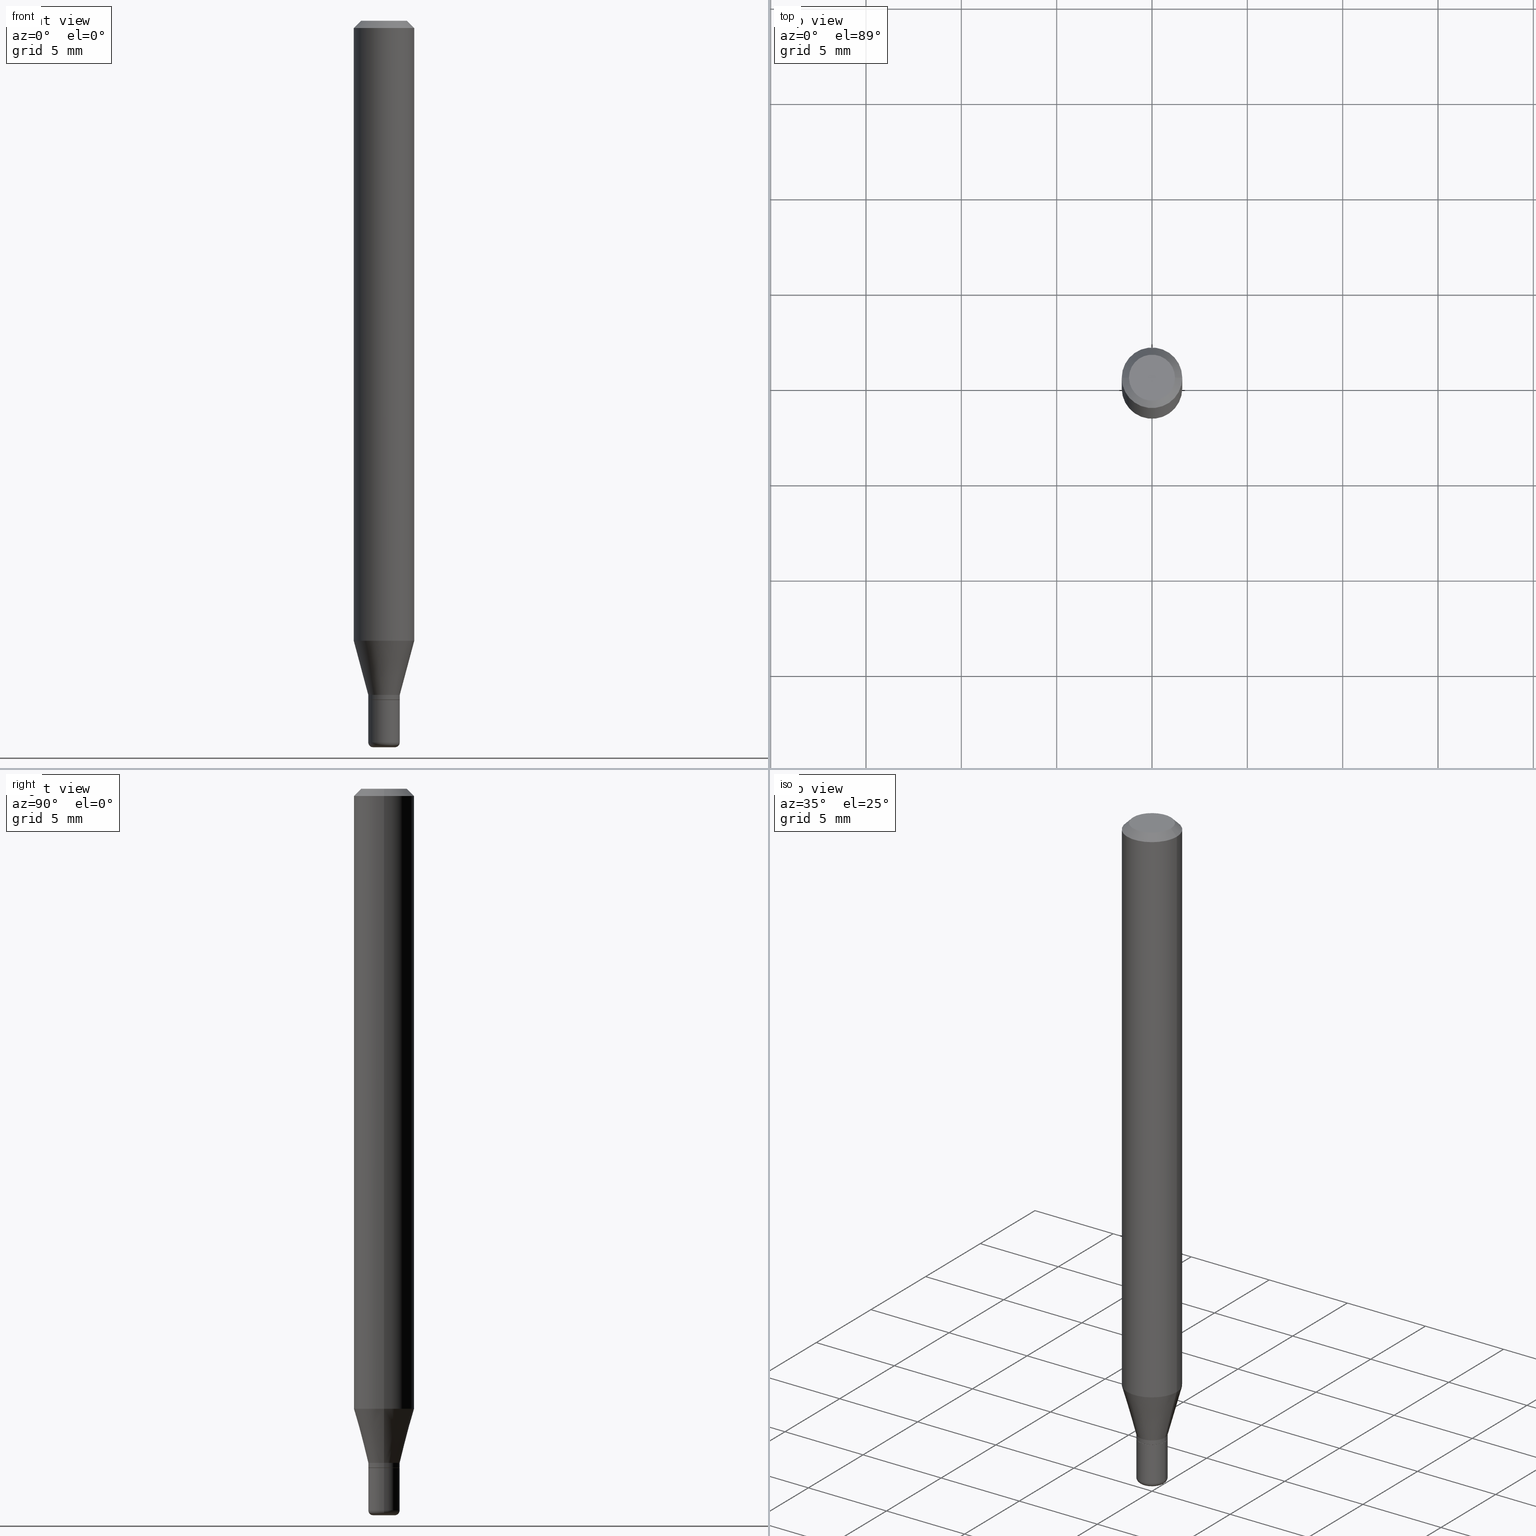
[diagram: canonical four-view strip — front | top / right | iso, engineering-drawing reading convention]
A machine part, canonical four-view strip (front | top / right | iso — engineering-drawing reading convention). The complete STEP part file that produces these views, byte-faithful:
ISO-10303-21;
HEADER;
FILE_DESCRIPTION (( 'STEP AP203' ),
    '1' );
FILE_NAME ('09166.STEP',
    '2024-02-29T22:53:20',
    ( '' ),
    ( '' ),
    'SwSTEP 2.0',
    'SolidWorks 2023',
    '' );
FILE_SCHEMA (( 'CONFIG_CONTROL_DESIGN' ));
ENDSEC;

DATA;
#1 = FACE_OUTER_BOUND ( 'NONE', #491, .T. ) ;
#2 = AXIS2_PLACEMENT_3D ( 'NONE', #228, #326, #374 ) ;
#3 = PERSON_AND_ORGANIZATION_ROLE ( 'creator' ) ;
#4 = LINE ( 'NONE', #78, #496 ) ;
#5 = CARTESIAN_POINT ( 'NONE',  ( 3.643748521215853910E-29, -5.202307194876288105E-15, -1.490000000000000213 ) ) ;
#6 = DIRECTION ( 'NONE',  ( 1.000000000000000000, -6.982962677686269866E-15, 0.000000000000000000 ) ) ;
#7 = VECTOR ( 'NONE', #493, 39.37007874015748143 ) ;
#8 = TOROIDAL_SURFACE ( 'NONE', #165, 0.02249999999999999917, 0.009999999999999946432 ) ;
#9 = ORIENTED_EDGE ( 'NONE', *, *, #29, .T. ) ;
#10 = CARTESIAN_POINT ( 'NONE',  ( 0.03249999999999996642, -2.269462870248034512E-16, 1.584757452133677591E-30 ) ) ;
#11 = LINE ( 'NONE', #14, #28 ) ;
#12 = CARTESIAN_POINT ( 'NONE',  ( 3.643748521215853910E-29, -5.202307194876288105E-15, -1.490000000000000213 ) ) ;
#13 = FACE_OUTER_BOUND ( 'NONE', #505, .T. ) ;
#14 = CARTESIAN_POINT ( 'NONE',  ( 0.03199999999999996597, -5.118511642744051990E-15, -1.402000000000000135 ) ) ;
#15 = AXIS2_PLACEMENT_3D ( 'NONE', #501, #270, #145 ) ;
#16 = AXIS2_PLACEMENT_3D ( 'NONE', #193, #342, #149 ) ;
#17 = DIRECTION ( 'NONE',  ( 1.000000000000000000, -6.982962677686267499E-15, 4.876176775795936353E-29 ) ) ;
#18 = EDGE_CURVE ( 'NONE', #246, #290, #471, .T. ) ;
#19 = ORIENTED_EDGE ( 'NONE', *, *, #136, .F. ) ;
#20 = DIRECTION ( 'NONE',  ( -2.445468806185136597E-29, 3.491481338843145583E-15, 1.000000000000000000 ) ) ;
#21 = DIRECTION ( 'NONE',  ( 1.000000000000000000, -6.982962677686266711E-15, 4.852736867747365086E-29 ) ) ;
#22 = CARTESIAN_POINT ( 'NONE',  ( 3.428547266271562329E-29, -4.895056837058090855E-15, -1.402000000000000135 ) ) ;
#23 = DIRECTION ( 'NONE',  ( 1.000000000000000000, -6.982962677686262766E-15, 0.000000000000000000 ) ) ;
#24 = PLANE ( 'NONE',  #47 ) ;
#25 = COORDINATED_UNIVERSAL_TIME_OFFSET ( 5, 0, .BEHIND. ) ;
#26 = EDGE_CURVE ( 'NONE', #296, #50, #451, .T. ) ;
#27 = FACE_OUTER_BOUND ( 'NONE', #107, .T. ) ;
#28 = VECTOR ( 'NONE', #456, 39.37007874015748143 ) ;
#29 = EDGE_CURVE ( 'NONE', #500, #481, #121, .T. ) ;
#30 = VECTOR ( 'NONE', #476, 39.37007874015748143 ) ;
#31 = DIRECTION ( 'NONE',  ( 1.000000000000000000, -6.982962677686258033E-15, 0.000000000000000000 ) ) ;
#32 = FACE_OUTER_BOUND ( 'NONE', #54, .T. ) ;
#33 = EDGE_LOOP ( 'NONE', ( #126, #35, #61, #485 ) ) ;
#34 = PERSON_AND_ORGANIZATION ( #509, #239 ) ;
#35 = ORIENTED_EDGE ( 'NONE', *, *, #402, .T. ) ;
#36 = AXIS2_PLACEMENT_3D ( 'NONE', #332, #284, #89 ) ;
#37 = CONICAL_SURFACE ( 'NONE', #324, 0.03199999999999996597, 0.7853981633975507526 ) ;
#38 = ORIENTED_EDGE ( 'NONE', *, *, #285, .T. ) ;
#39 = PERSON_AND_ORGANIZATION_ROLE ( 'design_owner' ) ;
#40 = EDGE_CURVE ( 'NONE', #296, #418, #163, .T. ) ;
#41 = EDGE_LOOP ( 'NONE', ( #424, #365, #262, #484 ) ) ;
#42 =( LENGTH_UNIT ( ) NAMED_UNIT ( * ) SI_UNIT ( $, .METRE. ) );
#43 = DIRECTION ( 'NONE',  ( -2.445468806185136597E-29, 3.491481338843145583E-15, 1.000000000000000000 ) ) ;
#44 = CC_DESIGN_PERSON_AND_ORGANIZATION_ASSIGNMENT ( #34, #3, ( #103 ) ) ;
#45 = FACE_OUTER_BOUND ( 'NONE', #265, .T. ) ;
#46 = DIRECTION ( 'NONE',  ( 0.7071067811865479058, -7.319954787623257623E-15, -0.7071067811865471286 ) ) ;
#47 = AXIS2_PLACEMENT_3D ( 'NONE', #427, #516, #109 ) ;
#48 = CC_DESIGN_APPROVAL ( #73, ( #422 ) ) ;
#49 = SHAPE_DEFINITION_REPRESENTATION ( #212, #158 ) ;
#50 = VERTEX_POINT ( 'NONE', #458 ) ;
#51 = CARTESIAN_POINT ( 'NONE',  ( 3.427324531868469528E-29, -4.893311096388670141E-15, -1.401500000000000412 ) ) ;
#52 = ORIENTED_EDGE ( 'NONE', *, *, #18, .F. ) ;
#53 = DIRECTION ( 'NONE',  ( -2.445468806185136597E-29, 3.491481338843145583E-15, 1.000000000000000000 ) ) ;
#54 = EDGE_LOOP ( 'NONE', ( #494, #100, #443, #243 ) ) ;
#55 = CIRCLE ( 'NONE', #36, 0.009999999999999944697 ) ;
#56 = ORIENTED_EDGE ( 'NONE', *, *, #26, .F. ) ;
#57 = AXIS2_PLACEMENT_3D ( 'NONE', #309, #63, #199 ) ;
#58 = FACE_OUTER_BOUND ( 'NONE', #357, .T. ) ;
#59 = ORIENTED_EDGE ( 'NONE', *, *, #382, .T. ) ;
#60 = CC_DESIGN_PERSON_AND_ORGANIZATION_ASSIGNMENT ( #242, #39, ( #512 ) ) ;
#61 = ORIENTED_EDGE ( 'NONE', *, *, #204, .T. ) ;
#62 = DIRECTION ( 'NONE',  ( -2.445468806185136877E-29, 3.491481338843145188E-15, 1.000000000000000000 ) ) ;
#63 = DIRECTION ( 'NONE',  ( -2.445468806185136597E-29, 3.491481338843145583E-15, 1.000000000000000000 ) ) ;
#64 = AXIS2_PLACEMENT_3D ( 'NONE', #289, #43, #414 ) ;
#65 = CIRCLE ( 'NONE', #76, 0.06250000000000000000 ) ;
#66 = CARTESIAN_POINT ( 'NONE',  ( 3.404092578209710223E-29, -4.860142023669658418E-15, -1.392000000000000126 ) ) ;
#67 = CARTESIAN_POINT ( 'NONE',  ( 3.668203209277632395E-31, -5.237222008264614861E-17, -0.01499999999999970281 ) ) ;
#68 = DATE_TIME_ROLE ( 'creation_date' ) ;
#69 = DIRECTION ( 'NONE',  ( -0.7071067811865479058, 2.468850131082261005E-15, -0.7071067811865471286 ) ) ;
#70 = PERSON_AND_ORGANIZATION_ROLE ( 'design_supplier' ) ;
#71 = CARTESIAN_POINT ( 'NONE',  ( 0.03250000000000000111, -5.122003124082894208E-15, -1.402000000000000135 ) ) ;
#72 = CONICAL_SURFACE ( 'NONE', #225, 0.06250000000000000000, 0.7853981633974488341 ) ;
#73 = APPROVAL ( #508, 'UNSPECIFIED' ) ;
#74 = CARTESIAN_POINT ( 'NONE',  ( 3.428547266271562329E-29, -4.895056837058090855E-15, -1.402000000000000135 ) ) ;
#75 = CIRCLE ( 'NONE', #401, 0.03250000000000000111 ) ;
#76 = AXIS2_PLACEMENT_3D ( 'NONE', #305, #472, #114 ) ;
#77 = CYLINDRICAL_SURFACE ( 'NONE', #16, 0.03249999999999996642 ) ;
#78 = CARTESIAN_POINT ( 'NONE',  ( 0.03249999999999998029, -2.269462870248035005E-16, 1.584757452133677942E-30 ) ) ;
#79 = ADVANCED_FACE ( 'NONE', ( #288 ), #72, .T. ) ;
#80 = ORIENTED_EDGE ( 'NONE', *, *, #517, .T. ) ;
#81 = DIRECTION ( 'NONE',  ( 0.000000000000000000, 0.000000000000000000, 1.000000000000000000 ) ) ;
#82 = ORIENTED_EDGE ( 'NONE', *, *, #387, .F. ) ;
#83 = ORIENTED_EDGE ( 'NONE', *, *, #84, .T. ) ;
#84 = EDGE_CURVE ( 'NONE', #397, #215, #207, .T. ) ;
#85 = ORIENTED_EDGE ( 'NONE', *, *, #517, .F. ) ;
#86 = DATE_AND_TIME ( #278, #430 ) ;
#87 = AXIS2_PLACEMENT_3D ( 'NONE', #281, #250, #407 ) ;
#88 = FACE_OUTER_BOUND ( 'NONE', #426, .T. ) ;
#89 = DIRECTION ( 'NONE',  ( 1.000000000000000000, -6.982962677686274599E-15, 0.000000000000000000 ) ) ;
#90 = EDGE_CURVE ( 'NONE', #447, #297, #219, .T. ) ;
#91 = DIRECTION ( 'NONE',  ( 1.000000000000000000, -6.982962677686265922E-15, 0.000000000000000000 ) ) ;
#92 = APPROVAL ( #352, 'UNSPECIFIED' ) ;
#93 = CARTESIAN_POINT ( 'NONE',  ( 3.668203209277632395E-31, -5.237222008264614861E-17, -0.01499999999999970281 ) ) ;
#94 = CIRCLE ( 'NONE', #454, 0.04750000000000000749 ) ;
#95 = CARTESIAN_POINT ( 'NONE',  ( 0.02250000000000000264, -5.394338668512659809E-15, -1.500000000000000222 ) ) ;
#96 = LINE ( 'NONE', #256, #477 ) ;
#97 = ORIENTED_EDGE ( 'NONE', *, *, #402, .F. ) ;
#98 = CARTESIAN_POINT ( 'NONE',  ( 3.668203209277632395E-31, -5.237222008264614861E-17, -0.01499999999999970281 ) ) ;
#99 = ADVANCED_FACE ( 'NONE', ( #13 ), #328, .T. ) ;
#100 = ORIENTED_EDGE ( 'NONE', *, *, #226, .T. ) ;
#101 = DIRECTION ( 'NONE',  ( -2.438088387897960049E-29, 3.491481338843145188E-15, 1.000000000000000000 ) ) ;
#102 = VECTOR ( 'NONE', #62, 39.37007874015748143 ) ;
#103 = PRODUCT_DEFINITION ( 'UNKNOWN', '', #282, #147 ) ;
#104 = EDGE_LOOP ( 'NONE', ( #185, #486, #287, #223 ) ) ;
#105 = CIRCLE ( 'NONE', #113, 0.03249999999999996642 ) ;
#106 = CARTESIAN_POINT ( 'NONE',  ( -0.06250000000000000000, 3.840629472727455270E-16, -0.01499999999999970281 ) ) ;
#107 = EDGE_LOOP ( 'NONE', ( #169, #316, #52, #498 ) ) ;
#108 = ADVANCED_FACE ( 'NONE', ( #58 ), #180, .F. ) ;
#109 = DIRECTION ( 'NONE',  ( -1.000000000000000000, 6.982962677686265922E-15, -4.876176775795935793E-29 ) ) ;
#110 = DIRECTION ( 'NONE',  ( -2.445468806185136597E-29, 3.491481338843145583E-15, 1.000000000000000000 ) ) ;
#111 = VECTOR ( 'NONE', #191, 39.37007874015748143 ) ;
#112 = DIRECTION ( 'NONE',  ( 1.000000000000000000, -6.982962677686258033E-15, 0.000000000000000000 ) ) ;
#113 = AXIS2_PLACEMENT_3D ( 'NONE', #344, #196, #346 ) ;
#114 = DIRECTION ( 'NONE',  ( 1.000000000000000000, -6.982962677686262766E-15, 0.000000000000000000 ) ) ;
#115 = DIRECTION ( 'NONE',  ( -2.445468806185136877E-29, 3.491481338843145188E-15, 1.000000000000000000 ) ) ;
#116 = CALENDAR_DATE ( 2024, 29, 2 ) ;
#117 = DIRECTION ( 'NONE',  ( 1.000000000000000000, -6.982962677686262766E-15, 0.000000000000000000 ) ) ;
#118 = DIRECTION ( 'NONE',  ( 1.000000000000000000, -6.982962677686279332E-15, 0.000000000000000000 ) ) ;
#119 = FACE_OUTER_BOUND ( 'NONE', #122, .T. ) ;
#120 = CARTESIAN_POINT ( 'NONE',  ( 0.03249999999999998029, -5.087088310694461770E-15, -1.392000000000000126 ) ) ;
#121 = CIRCLE ( 'NONE', #247, 0.03199999999999996597 ) ;
#122 = EDGE_LOOP ( 'NONE', ( #421, #142, #80, #184 ) ) ;
#123 = CARTESIAN_POINT ( 'NONE',  ( 3.668203209277704895E-29, -5.237222008264718177E-15, -1.500000000000000222 ) ) ;
#124 = CARTESIAN_POINT ( 'NONE',  ( 0.000000000000000000, 0.000000000000000000, 0.000000000000000000 ) ) ;
#125 = COORDINATED_UNIVERSAL_TIME_OFFSET ( 5, 0, .BEHIND. ) ;
#126 = ORIENTED_EDGE ( 'NONE', *, *, #376, .F. ) ;
#127 = EDGE_CURVE ( 'NONE', #177, #315, #506, .T. ) ;
#128 = CARTESIAN_POINT ( 'NONE',  ( 0.03249999999999994560, -5.429253481901091458E-15, -1.490000000000000213 ) ) ;
#129 = AXIS2_PLACEMENT_3D ( 'NONE', #411, #258, #17 ) ;
#130 = AXIS2_PLACEMENT_3D ( 'NONE', #386, #235, #468 ) ;
#131 = DIRECTION ( 'NONE',  ( 1.000000000000000000, -6.982962677686266711E-15, 0.000000000000000000 ) ) ;
#132 = EDGE_LOOP ( 'NONE', ( #229, #406, #478, #286 ) ) ;
#133 = UNCERTAINTY_MEASURE_WITH_UNIT (LENGTH_MEASURE( 1.000000000000000082E-05 ), #329, 'distance_accuracy_value', 'NONE');
#134 = FACE_OUTER_BOUND ( 'NONE', #445, .T. ) ;
#135 = CARTESIAN_POINT ( 'NONE',  ( -0.06250000000000000000, -1.816712125772470647E-15, -0.01499999999999970281 ) ) ;
#136 = EDGE_CURVE ( 'NONE', #500, #418, #11, .T. ) ;
#137 = DIRECTION ( 'NONE',  ( -2.445468806185136877E-29, 3.491481338843145188E-15, 1.000000000000000000 ) ) ;
#138 = AXIS2_PLACEMENT_3D ( 'NONE', #93, #497, #131 ) ;
#139 = VECTOR ( 'NONE', #69, 39.37007874015748143 ) ;
#140 = ORIENTED_EDGE ( 'NONE', *, *, #248, .T. ) ;
#141 = CARTESIAN_POINT ( 'NONE',  ( -0.03249999999999998029, 2.309263891220324204E-16, -1.598653904332843356E-30 ) ) ;
#142 = ORIENTED_EDGE ( 'NONE', *, *, #150, .T. ) ;
#143 = DIRECTION ( 'NONE',  ( -2.445468806185136597E-29, 3.491481338843145583E-15, 1.000000000000000000 ) ) ;
#144 = CC_DESIGN_DATE_AND_TIME_ASSIGNMENT ( #208, #360, ( #422 ) ) ;
#145 = DIRECTION ( 'NONE',  ( -1.000000000000000000, 7.105427357600964782E-15, 0.000000000000000000 ) ) ;
#146 = CIRCLE ( 'NONE', #276, 0.03249999999999998029 ) ;
#147 = DESIGN_CONTEXT ( 'detailed design', #461, 'design' ) ;
#148 = LOCAL_TIME ( 17, 53, 20.00000000000000000, #473 ) ;
#149 = DIRECTION ( 'NONE',  ( 1.000000000000000000, -6.982962677686267499E-15, 4.876176775795936353E-29 ) ) ;
#150 = EDGE_CURVE ( 'NONE', #447, #319, #379, .T. ) ;
#151 = FACE_OUTER_BOUND ( 'NONE', #252, .T. ) ;
#152 = CARTESIAN_POINT ( 'NONE',  ( 0.04750000000000000749, -4.035134999187568762E-16, 2.731847993664288856E-16 ) ) ;
#153 = CARTESIAN_POINT ( 'NONE',  ( 0.06250000000000000000, -4.905665618517812299E-15, -1.280038475772933504 ) ) ;
#154 = AXIS2_PLACEMENT_3D ( 'NONE', #338, #470, #112 ) ;
#155 = VECTOR ( 'NONE', #115, 39.37007874015748143 ) ;
#156 = PERSON_AND_ORGANIZATION ( #509, #239 ) ;
#157 = DIRECTION ( 'NONE',  ( -2.445468806185136597E-29, 3.491481338843145583E-15, 1.000000000000000000 ) ) ;
#158 = ADVANCED_BREP_SHAPE_REPRESENTATION ( '09166', ( #178, #502, #404 ), #174 ) ;
#159 = ORIENTED_EDGE ( 'NONE', *, *, #40, .T. ) ;
#160 = EDGE_CURVE ( 'NONE', #215, #246, #96, .T. ) ;
#161 = PERSON_AND_ORGANIZATION ( #509, #239 ) ;
#162 = DIRECTION ( 'NONE',  ( 0.2588190451025204064, 1.565188264969629659E-15, 0.9659258262890684232 ) ) ;
#163 = CIRCLE ( 'NONE', #370, 0.03249999999999996642 ) ;
#164 = PLANE ( 'NONE',  #87 ) ;
#165 = AXIS2_PLACEMENT_3D ( 'NONE', #5, #167, #320 ) ;
#166 = ORIENTED_EDGE ( 'NONE', *, *, #187, .T. ) ;
#167 = DIRECTION ( 'NONE',  ( -2.445468806185136597E-29, 3.491481338843145583E-15, 1.000000000000000000 ) ) ;
#168 = EDGE_CURVE ( 'NONE', #481, #500, #465, .T. ) ;
#169 = ORIENTED_EDGE ( 'NONE', *, *, #417, .T. ) ;
#170 = LENGTH_MEASURE_WITH_UNIT ( LENGTH_MEASURE( 0.02539999999999999897 ), #42 );
#171 = CARTESIAN_POINT ( 'NONE',  ( -0.03250000000000000111, -4.817755626845157109E-15, -1.402000000000000135 ) ) ;
#172 = CONICAL_SURFACE ( 'NONE', #392, 0.03249999999999998029, 0.2617993877991490748 ) ;
#173 = CARTESIAN_POINT ( 'NONE',  ( -0.02250000000000000264, -5.024365349236476600E-15, -1.500000000000000222 ) ) ;
#174 =( GEOMETRIC_REPRESENTATION_CONTEXT ( 3 ) GLOBAL_UNCERTAINTY_ASSIGNED_CONTEXT ( ( #133 ) ) GLOBAL_UNIT_ASSIGNED_CONTEXT ( ( #329, #322, #205 ) ) REPRESENTATION_CONTEXT ( 'NONE', 'WORKASPACE' ) );
#175 = CC_DESIGN_PERSON_AND_ORGANIZATION_ASSIGNMENT ( #156, #307, ( #422 ) ) ;
#176 = DIRECTION ( 'NONE',  ( 1.000000000000000000, -6.982962677686279332E-15, 0.000000000000000000 ) ) ;
#177 = VERTEX_POINT ( 'NONE', #173 ) ;
#178 = MANIFOLD_SOLID_BREP ( 'Body-Move/Copy2[1]', #216 ) ;
#179 = DIRECTION ( 'NONE',  ( -2.445468806185136597E-29, 3.491481338843145583E-15, 1.000000000000000000 ) ) ;
#180 = PLANE ( 'NONE',  #385 ) ;
#181 = ADVANCED_FACE ( 'NONE', ( #134 ), #325, .T. ) ;
#182 = CIRCLE ( 'NONE', #368, 0.03249999999999998029 ) ;
#183 = CC_DESIGN_APPROVAL ( #92, ( #282 ) ) ;
#184 = ORIENTED_EDGE ( 'NONE', *, *, #382, .F. ) ;
#185 = ORIENTED_EDGE ( 'NONE', *, *, #160, .F. ) ;
#186 = LINE ( 'NONE', #194, #102 ) ;
#187 = EDGE_CURVE ( 'NONE', #319, #447, #192, .T. ) ;
#188 = ORIENTED_EDGE ( 'NONE', *, *, #248, .F. ) ;
#189 = CARTESIAN_POINT ( 'NONE',  ( -0.06250000000000000000, -4.025141241312358014E-15, -1.280038475772933504 ) ) ;
#190 = COORDINATED_UNIVERSAL_TIME_OFFSET ( 5, 0, .BEHIND. ) ;
#191 = DIRECTION ( 'NONE',  ( -2.445468806185136877E-29, 3.491481338843145188E-15, 1.000000000000000000 ) ) ;
#192 = CIRCLE ( 'NONE', #323, 0.03249999999999994560 ) ;
#193 = CARTESIAN_POINT ( 'NONE',  ( 0.000000000000000000, 0.000000000000000000, 0.000000000000000000 ) ) ;
#194 = CARTESIAN_POINT ( 'NONE',  ( 0.06250000000000000000, -4.364351673553916694E-16, 3.047610484872459871E-30 ) ) ;
#195 = DIRECTION ( 'NONE',  ( 1.000000000000000000, -6.982962677686265922E-15, 4.876176775795935232E-29 ) ) ;
#196 = DIRECTION ( 'NONE',  ( -2.445468806185136597E-29, 3.491481338843145583E-15, 1.000000000000000000 ) ) ;
#197 = FACE_OUTER_BOUND ( 'NONE', #327, .T. ) ;
#198 = PERSON_AND_ORGANIZATION ( #509, #239 ) ;
#199 = DIRECTION ( 'NONE',  ( 1.000000000000000000, -6.982962677686266711E-15, 4.876176775795935793E-29 ) ) ;
#200 = CIRCLE ( 'NONE', #358, 0.06250000000000000000 ) ;
#201 = DIRECTION ( 'NONE',  ( -2.445468806185136597E-29, 3.491481338843145583E-15, 1.000000000000000000 ) ) ;
#202 = CARTESIAN_POINT ( 'NONE',  ( -0.06250000000000000000, 4.440892098500626162E-16, -3.074334431409316114E-30 ) ) ;
#203 = DIRECTION ( 'NONE',  ( -2.445468806185136597E-29, 3.491481338843145583E-15, 1.000000000000000000 ) ) ;
#204 = EDGE_CURVE ( 'NONE', #415, #246, #186, .T. ) ;
#205 =( NAMED_UNIT ( * ) SI_UNIT ( $, .STERADIAN. ) SOLID_ANGLE_UNIT ( ) );
#206 = ORIENTED_EDGE ( 'NONE', *, *, #450, .F. ) ;
#207 = CIRCLE ( 'NONE', #260, 0.04750000000000000749 ) ;
#208 = DATE_AND_TIME ( #116, #148 ) ;
#209 = APPROVAL_PERSON_ORGANIZATION ( #231, #92, #469 ) ;
#210 = ORIENTED_EDGE ( 'NONE', *, *, #29, .F. ) ;
#211 = CARTESIAN_POINT ( 'NONE',  ( -0.03249999999999996642, -4.662384707266636981E-15, -1.401500000000000412 ) ) ;
#212 = PRODUCT_DEFINITION_SHAPE ( 'NONE', 'NONE',  #103 ) ;
#213 = CARTESIAN_POINT ( 'NONE',  ( -0.03199999999999996597, -4.665033934440748182E-15, -1.402000000000000135 ) ) ;
#214 = DATE_AND_TIME ( #504, #299 ) ;
#215 = VERTEX_POINT ( 'NONE', #152 ) ;
#216 = CLOSED_SHELL ( 'NONE', ( #459, #99, #463, #405, #367, #108 ) ) ;
#217 = DIRECTION ( 'NONE',  ( -2.445468806185136597E-29, 3.491481338843145583E-15, 1.000000000000000000 ) ) ;
#218 = PLANE ( 'NONE',  #2 ) ;
#219 = LINE ( 'NONE', #377, #436 ) ;
#220 = DIRECTION ( 'NONE',  ( 1.000000000000000000, -6.982962677686265922E-15, 4.876176775795935232E-29 ) ) ;
#221 = APPROVAL_DATE_TIME ( #214, #73 ) ;
#222 = EDGE_CURVE ( 'NONE', #369, #297, #280, .T. ) ;
#223 = ORIENTED_EDGE ( 'NONE', *, *, #364, .T. ) ;
#224 = DIRECTION ( 'NONE',  ( -1.000000000000000000, 6.982962677686266711E-15, 0.000000000000000000 ) ) ;
#225 = AXIS2_PLACEMENT_3D ( 'NONE', #98, #381, #224 ) ;
#226 = EDGE_CURVE ( 'NONE', #177, #447, #292, .T. ) ;
#227 = DIRECTION ( 'NONE',  ( 1.000000000000000000, -6.982962677686267499E-15, 0.000000000000000000 ) ) ;
#228 = CARTESIAN_POINT ( 'NONE',  ( 3.428547266271562329E-29, -4.895056837058090855E-15, -1.402000000000000135 ) ) ;
#229 = ORIENTED_EDGE ( 'NONE', *, *, #233, .F. ) ;
#230 = DIRECTION ( 'NONE',  ( 1.000000000000000000, -6.982962677686266711E-15, 0.000000000000000000 ) ) ;
#231 = PERSON_AND_ORGANIZATION ( #509, #239 ) ;
#232 = VECTOR ( 'NONE', #162, 39.37007874015748143 ) ;
#233 = EDGE_CURVE ( 'NONE', #215, #397, #94, .T. ) ;
#234 = AXIS2_PLACEMENT_3D ( 'NONE', #348, #201, #195 ) ;
#235 = DIRECTION ( 'NONE',  ( -2.445468806185136597E-29, 3.491481338843145583E-15, 1.000000000000000000 ) ) ;
#236 = DATE_AND_TIME ( #347, #341 ) ;
#237 = DIRECTION ( 'NONE',  ( -2.445468806185136597E-29, 3.491481338843145583E-15, 1.000000000000000000 ) ) ;
#238 = CONICAL_SURFACE ( 'NONE', #64, 0.03249999999999998029, 0.2617993877991490748 ) ;
#239 = ORGANIZATION ( 'UNSPECIFIED', 'UNSPECIFIED', '' ) ;
#240 = VERTEX_POINT ( 'NONE', #189 ) ;
#241 = APPROVAL_ROLE ( '' ) ;
#242 = PERSON_AND_ORGANIZATION ( #509, #239 ) ;
#243 = ORIENTED_EDGE ( 'NONE', *, *, #302, .F. ) ;
#244 = APPLICATION_PROTOCOL_DEFINITION ( 'international standard', 'config_control_design', 1994, #461 ) ;
#245 = ADVANCED_FACE ( 'NONE', ( #507 ), #301, .T. ) ;
#246 = VERTEX_POINT ( 'NONE', #518 ) ;
#247 = AXIS2_PLACEMENT_3D ( 'NONE', #423, #254, #375 ) ;
#248 = EDGE_CURVE ( 'NONE', #418, #495, #4, .T. ) ;
#249 = ORIENTED_EDGE ( 'NONE', *, *, #383, .F. ) ;
#250 = DIRECTION ( 'NONE',  ( 2.438088387897960049E-29, -3.491481338843145188E-15, -1.000000000000000000 ) ) ;
#251 = DIRECTION ( 'NONE',  ( -2.445468806185136877E-29, 3.491481338843145188E-15, 1.000000000000000000 ) ) ;
#252 = EDGE_LOOP ( 'NONE', ( #464, #259, #483, #399 ) ) ;
#253 = CLOSED_SHELL ( 'NONE', ( #441, #452, #79, #395, #343, #334, #245, #420, #394, #274, #435, #181 ) ) ;
#254 = DIRECTION ( 'NONE',  ( -2.445468806185136597E-29, 3.491481338843145583E-15, 1.000000000000000000 ) ) ;
#255 = EDGE_CURVE ( 'NONE', #495, #415, #475, .T. ) ;
#256 = CARTESIAN_POINT ( 'NONE',  ( 0.06250000000000000000, -4.811533449433669144E-16, -0.01499999999999970281 ) ) ;
#257 = ORIENTED_EDGE ( 'NONE', *, *, #136, .T. ) ;
#258 = DIRECTION ( 'NONE',  ( -2.445468806185136597E-29, 3.491481338843145583E-15, 1.000000000000000000 ) ) ;
#259 = ORIENTED_EDGE ( 'NONE', *, *, #450, .T. ) ;
#260 = AXIS2_PLACEMENT_3D ( 'NONE', #373, #462, #412 ) ;
#261 = CONICAL_SURFACE ( 'NONE', #438, 0.06250000000000000000, 0.7853981633974488341 ) ;
#262 = ORIENTED_EDGE ( 'NONE', *, *, #302, .T. ) ;
#263 = CC_DESIGN_PERSON_AND_ORGANIZATION_ASSIGNMENT ( #515, #513, ( #282 ) ) ;
#264 = CARTESIAN_POINT ( 'NONE',  ( -6.680649051745406845E-45, 9.538196290434862081E-31, 2.731847993664263218E-16 ) ) ;
#265 = EDGE_LOOP ( 'NONE', ( #206, #455, #487, #97 ) ) ;
#266 = DIRECTION ( 'NONE',  ( 1.000000000000000000, -6.982962677686262766E-15, 0.000000000000000000 ) ) ;
#267 = DIRECTION ( 'NONE',  ( 1.000000000000000000, -6.982962677686279332E-15, 0.000000000000000000 ) ) ;
#268 = CARTESIAN_POINT ( 'NONE',  ( 3.668203209277632395E-31, -5.237222008264614861E-17, -0.01499999999999970281 ) ) ;
#269 = AXIS2_PLACEMENT_3D ( 'NONE', #294, #143, #227 ) ;
#270 = DIRECTION ( 'NONE',  ( 7.105427357601001859E-15, 1.000000000000000000, -3.491481338843145583E-15 ) ) ;
#271 = CARTESIAN_POINT ( 'NONE',  ( 0.03249999999999996642, -5.120257383413474282E-15, -1.401500000000000412 ) ) ;
#272 = CYLINDRICAL_SURFACE ( 'NONE', #234, 0.03249999999999998029 ) ;
#273 = CYLINDRICAL_SURFACE ( 'NONE', #57, 0.06250000000000000000 ) ;
#274 = ADVANCED_FACE ( 'NONE', ( #313 ), #218, .F. ) ;
#275 = FACE_OUTER_BOUND ( 'NONE', #362, .T. ) ;
#276 = AXIS2_PLACEMENT_3D ( 'NONE', #303, #237, #266 ) ;
#277 = DIRECTION ( 'NONE',  ( 1.000000000000000000, 0.000000000000000000, 0.000000000000000000 ) ) ;
#278 = CALENDAR_DATE ( 2024, 29, 2 ) ;
#279 = ORIENTED_EDGE ( 'NONE', *, *, #168, .T. ) ;
#280 = CIRCLE ( 'NONE', #154, 0.03250000000000000111 ) ;
#281 = CARTESIAN_POINT ( 'NONE',  ( 2.269462870248379145E-16, 0.03249999999999510225, -1.402000000000000135 ) ) ;
#282 = PRODUCT_DEFINITION_FORMATION_WITH_SPECIFIED_SOURCE ( 'ANY', '', #512, .NOT_KNOWN. ) ;
#283 = CC_DESIGN_PERSON_AND_ORGANIZATION_ASSIGNMENT ( #198, #70, ( #282 ) ) ;
#284 = DIRECTION ( 'NONE',  ( -6.982962677686266711E-15, -1.000000000000000000, 3.491481338843145583E-15 ) ) ;
#285 = EDGE_CURVE ( 'NONE', #481, #296, #384, .T. ) ;
#286 = ORIENTED_EDGE ( 'NONE', *, *, #432, .F. ) ;
#287 = ORIENTED_EDGE ( 'NONE', *, *, #432, .T. ) ;
#288 = FACE_OUTER_BOUND ( 'NONE', #132, .T. ) ;
#289 = CARTESIAN_POINT ( 'NONE',  ( 3.404092578209710223E-29, -4.860142023669658418E-15, -1.392000000000000126 ) ) ;
#290 = VERTEX_POINT ( 'NONE', #135 ) ;
#291 = DIRECTION ( 'NONE',  ( 1.000000000000000000, -6.982962677686267499E-15, 0.000000000000000000 ) ) ;
#292 = CIRCLE ( 'NONE', #15, 0.009999999999999944697 ) ;
#293 = CIRCLE ( 'NONE', #393, 0.02250000000000000264 ) ;
#294 = CARTESIAN_POINT ( 'NONE',  ( 3.668203209277704895E-29, -5.237222008264718177E-15, -1.500000000000000222 ) ) ;
#295 = DIRECTION ( 'NONE',  ( -2.445468806185136597E-29, 3.491481338843145583E-15, 1.000000000000000000 ) ) ;
#296 = VERTEX_POINT ( 'NONE', #211 ) ;
#297 = VERTEX_POINT ( 'NONE', #171 ) ;
#298 = TOROIDAL_SURFACE ( 'NONE', #333, 0.02249999999999999917, 0.009999999999999946432 ) ;
#299 = LOCAL_TIME ( 17, 53, 20.00000000000000000, #190 ) ;
#300 = EDGE_LOOP ( 'NONE', ( #210, #442 ) ) ;
#301 = CYLINDRICAL_SURFACE ( 'NONE', #448, 0.06250000000000000000 ) ;
#302 = EDGE_CURVE ( 'NONE', #315, #319, #55, .T. ) ;
#303 = CARTESIAN_POINT ( 'NONE',  ( 3.404092578209710223E-29, -4.860142023669658418E-15, -1.392000000000000126 ) ) ;
#304 = APPROVAL_ROLE ( '' ) ;
#305 = CARTESIAN_POINT ( 'NONE',  ( 3.130294163219477608E-29, -4.469230451162420630E-15, -1.280038475772933504 ) ) ;
#306 = CONICAL_SURFACE ( 'NONE', #372, 0.03199999999999996597, 0.7853981633975507526 ) ;
#307 = PERSON_AND_ORGANIZATION_ROLE ( 'classification_officer' ) ;
#308 = DIRECTION ( 'NONE',  ( -2.445468806185136597E-29, 3.491481338843145583E-15, 1.000000000000000000 ) ) ;
#309 = CARTESIAN_POINT ( 'NONE',  ( 0.000000000000000000, 0.000000000000000000, 0.000000000000000000 ) ) ;
#310 = DIRECTION ( 'NONE',  ( -2.445468806185136877E-29, 3.491481338843145188E-15, 1.000000000000000000 ) ) ;
#311 = COORDINATED_UNIVERSAL_TIME_OFFSET ( 5, 0, .BEHIND. ) ;
#312 = CARTESIAN_POINT ( 'NONE',  ( -0.03249999999999994560, -4.817755626845157109E-15, -1.490000000000000213 ) ) ;
#313 = FACE_OUTER_BOUND ( 'NONE', #300, .T. ) ;
#314 = EDGE_LOOP ( 'NONE', ( #449, #409, #249, #188 ) ) ;
#315 = VERTEX_POINT ( 'NONE', #95 ) ;
#316 = ORIENTED_EDGE ( 'NONE', *, *, #376, .T. ) ;
#317 = ORIENTED_EDGE ( 'NONE', *, *, #222, .T. ) ;
#318 = LINE ( 'NONE', #106, #139 ) ;
#319 = VERTEX_POINT ( 'NONE', #128 ) ;
#320 = DIRECTION ( 'NONE',  ( 1.000000000000000000, -6.982962677686270655E-15, 4.883557194083114022E-29 ) ) ;
#321 = APPLICATION_CONTEXT ( 'configuration controlled 3d designs of mechanical parts and assemblies' ) ;
#322 =( NAMED_UNIT ( * ) PLANE_ANGLE_UNIT ( ) SI_UNIT ( $, .RADIAN. ) );
#323 = AXIS2_PLACEMENT_3D ( 'NONE', #12, #179, #331 ) ;
#324 = AXIS2_PLACEMENT_3D ( 'NONE', #74, #363, #118 ) ;
#325 = CYLINDRICAL_SURFACE ( 'NONE', #510, 0.03249999999999998029 ) ;
#326 = DIRECTION ( 'NONE',  ( -2.438088387897960049E-29, 3.491481338843145188E-15, 1.000000000000000000 ) ) ;
#327 = EDGE_LOOP ( 'NONE', ( #457, #279, #257, #460 ) ) ;
#328 = CYLINDRICAL_SURFACE ( 'NONE', #129, 0.03249999999999996642 ) ;
#329 =( CONVERSION_BASED_UNIT ( 'INCH', #170 ) LENGTH_UNIT ( ) NAMED_UNIT ( #356 ) );
#330 = CARTESIAN_POINT ( 'NONE',  ( -0.03199999999999996597, -4.667683161614859383E-15, -1.402000000000000135 ) ) ;
#331 = DIRECTION ( 'NONE',  ( 1.000000000000000000, -6.982962677686269866E-15, 0.000000000000000000 ) ) ;
#332 = CARTESIAN_POINT ( 'NONE',  ( 0.02249999999999999917, -5.359423855124228949E-15, -1.490000000000000213 ) ) ;
#333 = AXIS2_PLACEMENT_3D ( 'NONE', #474, #157, #391 ) ;
#334 = ADVANCED_FACE ( 'NONE', ( #45 ), #238, .T. ) ;
#335 = APPROVAL_PERSON_ORGANIZATION ( #161, #350, #241 ) ;
#336 = CARTESIAN_POINT ( 'NONE',  ( 3.643748521215853910E-29, -5.202307194876288105E-15, -1.490000000000000213 ) ) ;
#337 = CARTESIAN_POINT ( 'NONE',  ( 3.582686580359766038E-29, -5.359686688179453325E-15, -1.500000000000000222 ) ) ;
#338 = CARTESIAN_POINT ( 'NONE',  ( 3.428547266271562329E-29, -4.895056837058090855E-15, -1.402000000000000135 ) ) ;
#339 = CC_DESIGN_DATE_AND_TIME_ASSIGNMENT ( #86, #68, ( #103 ) ) ;
#340 = ORIENTED_EDGE ( 'NONE', *, *, #413, .F. ) ;
#341 = LOCAL_TIME ( 17, 53, 20.00000000000000000, #25 ) ;
#342 = DIRECTION ( 'NONE',  ( -2.445468806185136597E-29, 3.491481338843145583E-15, 1.000000000000000000 ) ) ;
#343 = ADVANCED_FACE ( 'NONE', ( #151 ), #172, .T. ) ;
#344 = CARTESIAN_POINT ( 'NONE',  ( 3.427324531868469528E-29, -4.893311096388670141E-15, -1.401500000000000412 ) ) ;
#345 = PERSON_AND_ORGANIZATION ( #509, #239 ) ;
#346 = DIRECTION ( 'NONE',  ( 1.000000000000000000, -6.982962677686265922E-15, 0.000000000000000000 ) ) ;
#347 = CALENDAR_DATE ( 2024, 29, 2 ) ;
#348 = CARTESIAN_POINT ( 'NONE',  ( 0.000000000000000000, 0.000000000000000000, 0.000000000000000000 ) ) ;
#349 = AXIS2_PLACEMENT_3D ( 'NONE', #336, #295, #6 ) ;
#350 = APPROVAL ( #479, 'UNSPECIFIED' ) ;
#351 = DIRECTION ( 'NONE',  ( -2.445468806185136597E-29, 3.491481338843145583E-15, 1.000000000000000000 ) ) ;
#352 = APPROVAL_STATUS ( 'not_yet_approved' ) ;
#353 = DIRECTION ( 'NONE',  ( 1.000000000000000000, -6.982962677686266711E-15, 4.876176775795935793E-29 ) ) ;
#354 = DIRECTION ( 'NONE',  ( -1.000000000000000000, 6.982962677686266711E-15, 0.000000000000000000 ) ) ;
#355 = CALENDAR_DATE ( 2024, 29, 2 ) ;
#356 = DIMENSIONAL_EXPONENTS ( 1.000000000000000000, 0.000000000000000000, 0.000000000000000000, 0.000000000000000000, 0.000000000000000000, 0.000000000000000000, 0.000000000000000000 ) ;
#357 = EDGE_LOOP ( 'NONE', ( #453, #419 ) ) ;
#358 = AXIS2_PLACEMENT_3D ( 'NONE', #268, #110, #230 ) ;
#359 = CC_DESIGN_APPROVAL ( #350, ( #103 ) ) ;
#360 = DATE_TIME_ROLE ( 'classification_date' ) ;
#361 = ORIENTED_EDGE ( 'NONE', *, *, #233, .T. ) ;
#362 = EDGE_LOOP ( 'NONE', ( #83, #361 ) ) ;
#363 = DIRECTION ( 'NONE',  ( -2.445468806185136597E-29, 3.491481338843145583E-15, 1.000000000000000000 ) ) ;
#364 = EDGE_CURVE ( 'NONE', #290, #246, #200, .T. ) ;
#365 = ORIENTED_EDGE ( 'NONE', *, *, #127, .T. ) ;
#366 = CARTESIAN_POINT ( 'NONE',  ( 0.03249999999999998029, -5.087088310694461770E-15, -1.392000000000000126 ) ) ;
#367 = ADVANCED_FACE ( 'NONE', ( #437 ), #298, .T. ) ;
#368 = AXIS2_PLACEMENT_3D ( 'NONE', #66, #351, #23 ) ;
#369 = VERTEX_POINT ( 'NONE', #71 ) ;
#370 = AXIS2_PLACEMENT_3D ( 'NONE', #51, #499, #91 ) ;
#371 = LINE ( 'NONE', #10, #155 ) ;
#372 = AXIS2_PLACEMENT_3D ( 'NONE', #22, #20, #267 ) ;
#373 = CARTESIAN_POINT ( 'NONE',  ( -6.680649051745406845E-45, 9.538196290434862081E-31, 2.731847993664263218E-16 ) ) ;
#374 = DIRECTION ( 'NONE',  ( 1.000000000000000000, -6.982962677686265922E-15, 4.876176775795935793E-29 ) ) ;
#375 = DIRECTION ( 'NONE',  ( 1.000000000000000000, -6.982962677686279332E-15, 0.000000000000000000 ) ) ;
#376 = EDGE_CURVE ( 'NONE', #240, #290, #514, .T. ) ;
#377 = CARTESIAN_POINT ( 'NONE',  ( -0.03249999999999996642, 2.309263891220323218E-16, -1.598653904332843006E-30 ) ) ;
#378 = ORIENTED_EDGE ( 'NONE', *, *, #90, .T. ) ;
#379 = CIRCLE ( 'NONE', #349, 0.03249999999999994560 ) ;
#380 = CIRCLE ( 'NONE', #130, 0.06250000000000000000 ) ;
#381 = DIRECTION ( 'NONE',  ( 2.445468806185136597E-29, -3.491481338843145583E-15, -1.000000000000000000 ) ) ;
#382 = EDGE_CURVE ( 'NONE', #297, #369, #75, .T. ) ;
#383 = EDGE_CURVE ( 'NONE', #495, #50, #182, .T. ) ;
#384 = LINE ( 'NONE', #330, #7 ) ;
#385 = AXIS2_PLACEMENT_3D ( 'NONE', #337, #101, #492 ) ;
#386 = CARTESIAN_POINT ( 'NONE',  ( 3.130294163219477608E-29, -4.469230451162420630E-15, -1.280038475772933504 ) ) ;
#387 = EDGE_CURVE ( 'NONE', #50, #495, #146, .T. ) ;
#388 = CARTESIAN_POINT ( 'NONE',  ( 3.428547266271562329E-29, -4.895056837058090855E-15, -1.402000000000000135 ) ) ;
#389 = APPROVAL_DATE_TIME ( #236, #92 ) ;
#390 = SECURITY_CLASSIFICATION_LEVEL ( 'unclassified' ) ;
#391 = DIRECTION ( 'NONE',  ( 1.000000000000000000, -6.982962677686270655E-15, 4.883557194083114022E-29 ) ) ;
#392 = AXIS2_PLACEMENT_3D ( 'NONE', #467, #431, #117 ) ;
#393 = AXIS2_PLACEMENT_3D ( 'NONE', #123, #410, #291 ) ;
#394 = ADVANCED_FACE ( 'NONE', ( #275 ), #24, .F. ) ;
#395 = ADVANCED_FACE ( 'NONE', ( #27 ), #273, .T. ) ;
#396 = LINE ( 'NONE', #444, #30 ) ;
#397 = VERTEX_POINT ( 'NONE', #434 ) ;
#398 = DATE_AND_TIME ( #355, #466 ) ;
#399 = ORIENTED_EDGE ( 'NONE', *, *, #255, .F. ) ;
#400 = DIRECTION ( 'NONE',  ( 2.445468806185136597E-29, -3.491481338843145583E-15, -1.000000000000000000 ) ) ;
#401 = AXIS2_PLACEMENT_3D ( 'NONE', #388, #308, #31 ) ;
#402 = EDGE_CURVE ( 'NONE', #240, #415, #380, .T. ) ;
#403 = MECHANICAL_CONTEXT ( 'NONE', #321, 'mechanical' ) ;
#404 = AXIS2_PLACEMENT_3D ( 'NONE', #124, #81, #277 ) ;
#405 = ADVANCED_FACE ( 'NONE', ( #119 ), #77, .T. ) ;
#406 = ORIENTED_EDGE ( 'NONE', *, *, #160, .T. ) ;
#407 = DIRECTION ( 'NONE',  ( -1.000000000000000000, 6.982962677686265922E-15, -4.876176775795935793E-29 ) ) ;
#408 = ORIENTED_EDGE ( 'NONE', *, *, #222, .F. ) ;
#409 = ORIENTED_EDGE ( 'NONE', *, *, #26, .T. ) ;
#410 = DIRECTION ( 'NONE',  ( -2.445468806185136597E-29, 3.491481338843145583E-15, 1.000000000000000000 ) ) ;
#411 = CARTESIAN_POINT ( 'NONE',  ( 0.000000000000000000, 0.000000000000000000, 0.000000000000000000 ) ) ;
#412 = DIRECTION ( 'NONE',  ( 1.000000000000000000, -6.982962677686266711E-15, 4.852736867747365086E-29 ) ) ;
#413 = EDGE_CURVE ( 'NONE', #418, #296, #105, .T. ) ;
#414 = DIRECTION ( 'NONE',  ( 1.000000000000000000, -6.982962677686262766E-15, 0.000000000000000000 ) ) ;
#415 = VERTEX_POINT ( 'NONE', #153 ) ;
#416 = CARTESIAN_POINT ( 'NONE',  ( 3.428547266271562329E-29, -4.895056837058090855E-15, -1.402000000000000135 ) ) ;
#417 = EDGE_CURVE ( 'NONE', #415, #240, #65, .T. ) ;
#418 = VERTEX_POINT ( 'NONE', #271 ) ;
#419 = ORIENTED_EDGE ( 'NONE', *, *, #127, .F. ) ;
#420 = ADVANCED_FACE ( 'NONE', ( #433 ), #261, .T. ) ;
#421 = ORIENTED_EDGE ( 'NONE', *, *, #90, .F. ) ;
#422 = SECURITY_CLASSIFICATION ( '', '', #390 ) ;
#423 = CARTESIAN_POINT ( 'NONE',  ( 3.428547266271562329E-29, -4.895056837058090855E-15, -1.402000000000000135 ) ) ;
#424 = ORIENTED_EDGE ( 'NONE', *, *, #226, .F. ) ;
#425 = DIRECTION ( 'NONE',  ( -2.445468806185136597E-29, 3.491481338843145583E-15, 1.000000000000000000 ) ) ;
#426 = EDGE_LOOP ( 'NONE', ( #9, #38, #340, #19 ) ) ;
#427 = CARTESIAN_POINT ( 'NONE',  ( 3.316907271900976589E-16, 0.04750000000000000749, -2.925296391183627249E-17 ) ) ;
#428 = FACE_OUTER_BOUND ( 'NONE', #314, .T. ) ;
#429 = AXIS2_PLACEMENT_3D ( 'NONE', #416, #217, #176 ) ;
#430 = LOCAL_TIME ( 17, 53, 20.00000000000000000, #125 ) ;
#431 = DIRECTION ( 'NONE',  ( -2.445468806185136597E-29, 3.491481338843145583E-15, 1.000000000000000000 ) ) ;
#432 = EDGE_CURVE ( 'NONE', #397, #290, #318, .T. ) ;
#433 = FACE_OUTER_BOUND ( 'NONE', #104, .T. ) ;
#434 = CARTESIAN_POINT ( 'NONE',  ( -0.04750000000000000749, 3.578768372314221353E-16, 2.731847993664239060E-16 ) ) ;
#435 = ADVANCED_FACE ( 'NONE', ( #197 ), #306, .T. ) ;
#436 = VECTOR ( 'NONE', #251, 39.37007874015748143 ) ;
#437 = FACE_OUTER_BOUND ( 'NONE', #41, .T. ) ;
#438 = AXIS2_PLACEMENT_3D ( 'NONE', #67, #400, #354 ) ;
#439 = CC_DESIGN_SECURITY_CLASSIFICATION ( #422, ( #282 ) ) ;
#440 = CARTESIAN_POINT ( 'NONE',  ( 0.000000000000000000, 0.000000000000000000, 0.000000000000000000 ) ) ;
#441 = ADVANCED_FACE ( 'NONE', ( #428 ), #272, .T. ) ;
#442 = ORIENTED_EDGE ( 'NONE', *, *, #168, .F. ) ;
#443 = ORIENTED_EDGE ( 'NONE', *, *, #187, .F. ) ;
#444 = CARTESIAN_POINT ( 'NONE',  ( -0.03249999999999998029, -4.629215634547626046E-15, -1.392000000000000126 ) ) ;
#445 = EDGE_LOOP ( 'NONE', ( #56, #159, #140, #82 ) ) ;
#446 = APPLICATION_PROTOCOL_DEFINITION ( 'international standard', 'config_control_design', 1994, #321 ) ;
#447 = VERTEX_POINT ( 'NONE', #312 ) ;
#448 = AXIS2_PLACEMENT_3D ( 'NONE', #440, #203, #353 ) ;
#449 = ORIENTED_EDGE ( 'NONE', *, *, #413, .T. ) ;
#450 = EDGE_CURVE ( 'NONE', #50, #240, #396, .T. ) ;
#451 = LINE ( 'NONE', #141, #488 ) ;
#452 = ADVANCED_FACE ( 'NONE', ( #88 ), #37, .T. ) ;
#453 = ORIENTED_EDGE ( 'NONE', *, *, #511, .F. ) ;
#454 = AXIS2_PLACEMENT_3D ( 'NONE', #264, #425, #21 ) ;
#455 = ORIENTED_EDGE ( 'NONE', *, *, #387, .T. ) ;
#456 = DIRECTION ( 'NONE',  ( 0.7071067811866199593, -2.468850131083015945E-15, 0.7071067811864750752 ) ) ;
#457 = ORIENTED_EDGE ( 'NONE', *, *, #285, .F. ) ;
#458 = CARTESIAN_POINT ( 'NONE',  ( -0.03249999999999998029, -4.327178437929992425E-15, -1.392000000000000126 ) ) ;
#459 = ADVANCED_FACE ( 'NONE', ( #32 ), #8, .T. ) ;
#460 = ORIENTED_EDGE ( 'NONE', *, *, #40, .F. ) ;
#461 = APPLICATION_CONTEXT ( 'configuration controlled 3d designs of mechanical parts and assemblies' ) ;
#462 = DIRECTION ( 'NONE',  ( -2.445468806185136597E-29, 3.491481338843145583E-15, 1.000000000000000000 ) ) ;
#463 = ADVANCED_FACE ( 'NONE', ( #1 ), #164, .F. ) ;
#464 = ORIENTED_EDGE ( 'NONE', *, *, #383, .T. ) ;
#465 = CIRCLE ( 'NONE', #429, 0.03199999999999996597 ) ;
#466 = LOCAL_TIME ( 17, 53, 20.00000000000000000, #311 ) ;
#467 = CARTESIAN_POINT ( 'NONE',  ( 3.404092578209710223E-29, -4.860142023669658418E-15, -1.392000000000000126 ) ) ;
#468 = DIRECTION ( 'NONE',  ( 1.000000000000000000, -6.982962677686262766E-15, 0.000000000000000000 ) ) ;
#469 = APPROVAL_ROLE ( '' ) ;
#470 = DIRECTION ( 'NONE',  ( -2.445468806185136597E-29, 3.491481338843145583E-15, 1.000000000000000000 ) ) ;
#471 = CIRCLE ( 'NONE', #138, 0.06250000000000000000 ) ;
#472 = DIRECTION ( 'NONE',  ( -2.445468806185136597E-29, 3.491481338843145583E-15, 1.000000000000000000 ) ) ;
#473 = COORDINATED_UNIVERSAL_TIME_OFFSET ( 5, 0, .BEHIND. ) ;
#474 = CARTESIAN_POINT ( 'NONE',  ( 3.643748521215853910E-29, -5.202307194876288105E-15, -1.490000000000000213 ) ) ;
#475 = LINE ( 'NONE', #120, #232 ) ;
#476 = DIRECTION ( 'NONE',  ( -0.2588190451025204064, 5.211531920934543942E-15, 0.9659258262890684232 ) ) ;
#477 = VECTOR ( 'NONE', #46, 39.37007874015748143 ) ;
#478 = ORIENTED_EDGE ( 'NONE', *, *, #18, .T. ) ;
#479 = APPROVAL_STATUS ( 'not_yet_approved' ) ;
#480 = APPROVAL_DATE_TIME ( #398, #350 ) ;
#481 = VERTEX_POINT ( 'NONE', #213 ) ;
#482 = CARTESIAN_POINT ( 'NONE',  ( 0.03199999999999996597, -5.118511642744051990E-15, -1.402000000000000135 ) ) ;
#483 = ORIENTED_EDGE ( 'NONE', *, *, #417, .F. ) ;
#484 = ORIENTED_EDGE ( 'NONE', *, *, #150, .F. ) ;
#485 = ORIENTED_EDGE ( 'NONE', *, *, #364, .F. ) ;
#486 = ORIENTED_EDGE ( 'NONE', *, *, #84, .F. ) ;
#487 = ORIENTED_EDGE ( 'NONE', *, *, #255, .T. ) ;
#488 = VECTOR ( 'NONE', #137, 39.37007874015748143 ) ;
#489 = APPROVAL_PERSON_ORGANIZATION ( #345, #73, #304 ) ;
#490 = CARTESIAN_POINT ( 'NONE',  ( 0.000000000000000000, 0.000000000000000000, 0.000000000000000000 ) ) ;
#491 = EDGE_LOOP ( 'NONE', ( #317, #59 ) ) ;
#492 = DIRECTION ( 'NONE',  ( 1.000000000000000000, -6.982962677686265922E-15, 4.876176775795935793E-29 ) ) ;
#493 = DIRECTION ( 'NONE',  ( -0.7071067811866199593, 7.493145998870616062E-15, 0.7071067811864750752 ) ) ;
#494 = ORIENTED_EDGE ( 'NONE', *, *, #511, .T. ) ;
#495 = VERTEX_POINT ( 'NONE', #366 ) ;
#496 = VECTOR ( 'NONE', #310, 39.37007874015748143 ) ;
#497 = DIRECTION ( 'NONE',  ( -2.445468806185136597E-29, 3.491481338843145583E-15, 1.000000000000000000 ) ) ;
#498 = ORIENTED_EDGE ( 'NONE', *, *, #204, .F. ) ;
#499 = DIRECTION ( 'NONE',  ( -2.445468806185136597E-29, 3.491481338843145583E-15, 1.000000000000000000 ) ) ;
#500 = VERTEX_POINT ( 'NONE', #482 ) ;
#501 = CARTESIAN_POINT ( 'NONE',  ( -0.02249999999999999917, -5.042435079330265816E-15, -1.490000000000000213 ) ) ;
#502 = MANIFOLD_SOLID_BREP ( 'Body-Move/Copy2[2]', #253 ) ;
#503 = PRODUCT_RELATED_PRODUCT_CATEGORY ( 'detail', '', ( #512 ) ) ;
#504 = CALENDAR_DATE ( 2024, 29, 2 ) ;
#505 = EDGE_LOOP ( 'NONE', ( #166, #378, #408, #85 ) ) ;
#506 = CIRCLE ( 'NONE', #269, 0.02250000000000000264 ) ;
#507 = FACE_OUTER_BOUND ( 'NONE', #33, .T. ) ;
#508 = APPROVAL_STATUS ( 'not_yet_approved' ) ;
#509 = PERSON ( 'UNSPECIFIED', 'UNSPECIFIED', 'UNSPECIFIED', ('UNSPECIFIED'), ('UNSPECIFIED'), ('UNSPECIFIED') ) ;
#510 = AXIS2_PLACEMENT_3D ( 'NONE', #490, #53, #220 ) ;
#511 = EDGE_CURVE ( 'NONE', #315, #177, #293, .T. ) ;
#512 = PRODUCT ( '09166', '09166', '', ( #403 ) ) ;
#513 = PERSON_AND_ORGANIZATION_ROLE ( 'creator' ) ;
#514 = LINE ( 'NONE', #202, #111 ) ;
#515 = PERSON_AND_ORGANIZATION ( #509, #239 ) ;
#516 = DIRECTION ( 'NONE',  ( 2.438088387897960049E-29, -3.491481338843145188E-15, -1.000000000000000000 ) ) ;
#517 = EDGE_CURVE ( 'NONE', #319, #369, #371, .T. ) ;
#518 = CARTESIAN_POINT ( 'NONE',  ( 0.06250000000000000000, -4.888073874380378612E-16, -0.01499999999999970281 ) ) ;
ENDSEC;
END-ISO-10303-21;
